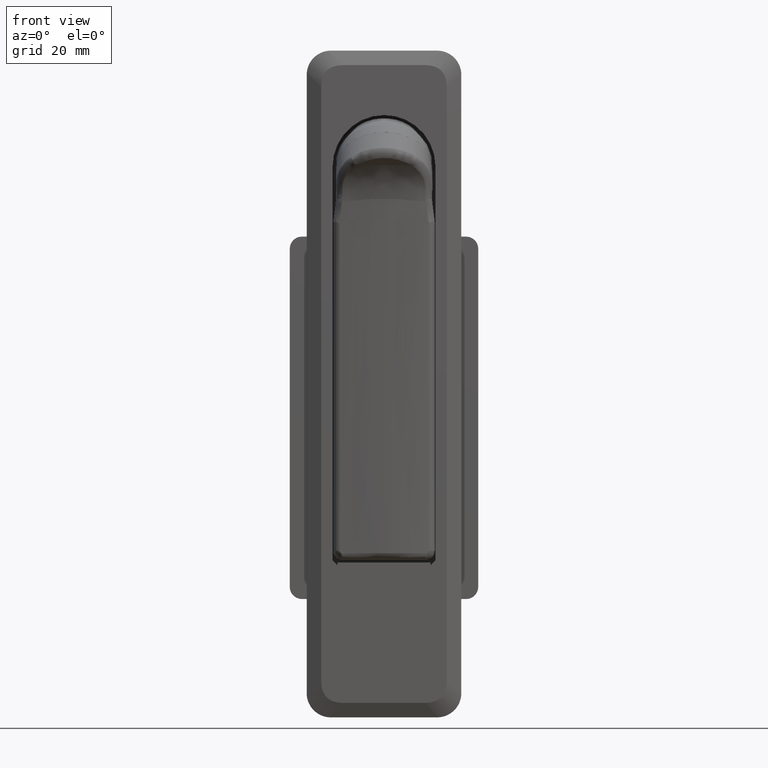
[diagram: clean part render]
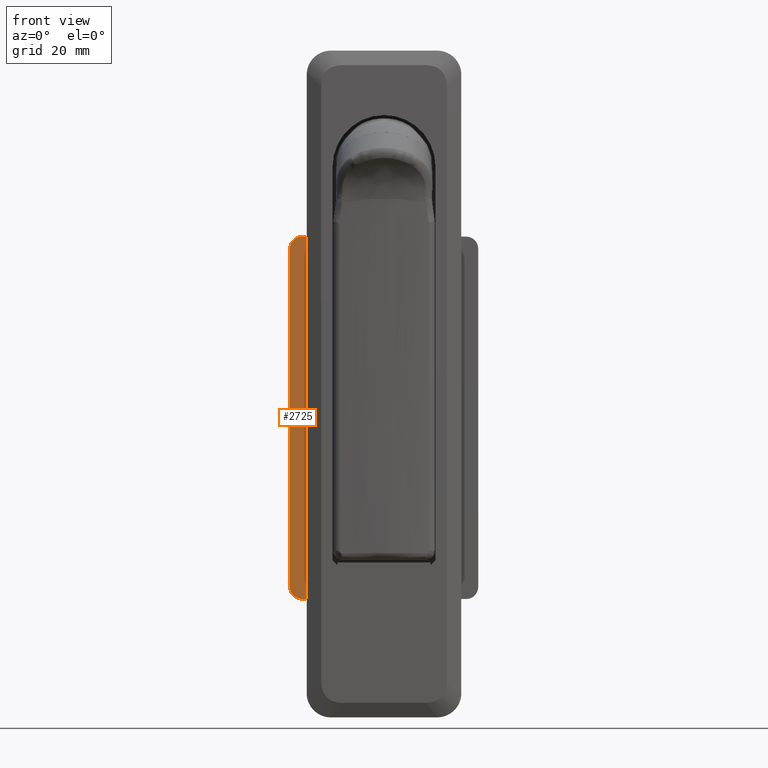
[diagram: same view with one face highlighted and labeled with its STEP entity id]
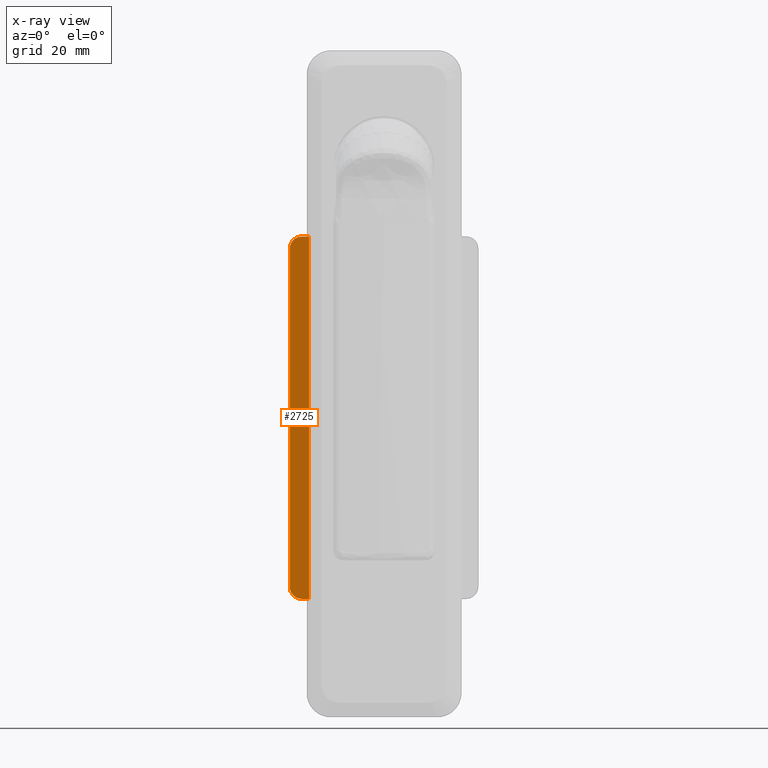
[diagram: x-ray of the same camera — body ghosted, the highlighted face saturated]
A machine part, front view. The second image highlights one B-rep face of the part: STEP entity #2725.
The next image is the same camera in x-ray: the body ghosted, the highlighted face saturated — about 0% of this face is hidden behind the body in this view.
In plain terms, the highlighted face is a freeform B-spline surface patch.
Its self-contained STEP definition (entity closure, byte-faithful):
#2105=CARTESIAN_POINT('',(4.299999999999955,17.0,-89.500000000000000));
#2106=VERTEX_POINT('',#2105);
#2112=CARTESIAN_POINT('',(4.299999999999950,19.500000000000000,-87.0));
#2113=VERTEX_POINT('',#2112);
#2114=CARTESIAN_POINT('',(4.299999999999950,19.500000000000000,-87.0));
#2115=CARTESIAN_POINT('',(4.299999999999952,19.500443854205059,-87.347759588085950));
#2116=CARTESIAN_POINT('',(4.299999999999947,19.365506901970001,-87.981487937173000));
#2117=CARTESIAN_POINT('',(4.299999999999959,18.904286350899671,-88.671816443168169));
#2118=CARTESIAN_POINT('',(4.299999999999954,18.431707933299730,-89.069101916940753));
#2119=CARTESIAN_POINT('',(4.299999999999956,17.838291027558451,-89.395905802994037));
#2120=CARTESIAN_POINT('',(4.299999999999948,17.347798934517549,-89.500468814343492));
#2121=CARTESIAN_POINT('',(4.299999999999955,17.0,-89.500000000000000));
#2122=B_SPLINE_CURVE_WITH_KNOTS('',3,(#2114,#2115,#2116,#2117,#2118,#2119,#2120,#2121),.UNSPECIFIED.,.F.,.U.,(4,1,1,1,1,4),(0.000000307271375,1.043135946012805,1.902227440174774,2.454423626520123,2.883953722123376,3.927089360864353),.UNSPECIFIED.);
#2123=EDGE_CURVE('',#2113,#2106,#2122,.T.);
#2162=CARTESIAN_POINT('',(4.299999999999950,19.500000000000000,-17.0));
#2163=VERTEX_POINT('',#2162);
#2169=CARTESIAN_POINT('',(4.299999999999955,17.0,-14.500000000000000));
#2170=VERTEX_POINT('',#2169);
#2171=CARTESIAN_POINT('',(4.299999999999955,17.0,-14.500000000000000));
#2172=CARTESIAN_POINT('',(4.299999999999954,17.368299480563469,-14.499378742528620));
#2173=CARTESIAN_POINT('',(4.299999999999958,17.899517969551709,-14.619708133686821));
#2174=CARTESIAN_POINT('',(4.299999999999958,18.569423684800508,-15.021260506646330));
#2175=CARTESIAN_POINT('',(4.299999999999957,18.978723477947479,-15.430591013378010));
#2176=CARTESIAN_POINT('',(4.299999999999946,19.380311251594240,-16.100470725251220));
#2177=CARTESIAN_POINT('',(4.299999999999962,19.500603108142819,-16.631705399485469));
#2178=CARTESIAN_POINT('',(4.299999999999950,19.500000000000000,-17.0));
#2179=B_SPLINE_CURVE_WITH_KNOTS('',3,(#2171,#2172,#2173,#2174,#2175,#2176,#2177,#2178),.UNSPECIFIED.,.F.,.U.,(4,1,1,1,1,4),(0.000000307274926,1.104502722684548,1.595421393526904,2.331668274612933,2.822586945455088,3.927089360864210),.UNSPECIFIED.);
#2180=EDGE_CURVE('',#2170,#2163,#2179,.T.);
#2367=CARTESIAN_POINT('',(4.299999999999955,15.500000000000000,-14.500000000000000));
#2368=VERTEX_POINT('',#2367);
#2369=CARTESIAN_POINT('',(4.299999999999955,17.0,-14.500000000000000));
#2370=CARTESIAN_POINT('',(4.299999999999955,15.500000000000000,-14.500000000000000));
#2371=QUASI_UNIFORM_CURVE('',1,(#2369,#2370),.UNSPECIFIED.,.F.,.U.);
#2372=EDGE_CURVE('',#2170,#2368,#2371,.T.);
#2427=CARTESIAN_POINT('',(4.299999999999950,19.500000000000000,-87.0));
#2428=CARTESIAN_POINT('',(4.299999999999950,19.500000000000000,-17.0));
#2429=QUASI_UNIFORM_CURVE('',1,(#2427,#2428),.UNSPECIFIED.,.F.,.U.);
#2430=EDGE_CURVE('',#2113,#2163,#2429,.T.);
#2680=CARTESIAN_POINT('',(4.299999999999955,15.500000000000000,-89.500000000000000));
#2681=VERTEX_POINT('',#2680);
#2682=CARTESIAN_POINT('',(4.299999999999955,15.500000000000000,-89.500000000000000));
#2683=CARTESIAN_POINT('',(4.299999999999955,15.500000000000000,-14.500000000000000));
#2684=QUASI_UNIFORM_CURVE('',1,(#2682,#2683),.UNSPECIFIED.,.F.,.U.);
#2685=EDGE_CURVE('',#2681,#2368,#2684,.T.);
#2708=CARTESIAN_POINT('',(4.299999999999950,19.699799992247218,-93.246249854635465));
#2709=CARTESIAN_POINT('',(4.299999999999950,15.300199900464410,-93.246249854635465));
#2710=CARTESIAN_POINT('',(4.299999999999950,19.699799992247218,-10.753748133707790));
#2711=CARTESIAN_POINT('',(4.299999999999950,15.300199900464410,-10.753748133707790));
#2712=B_SPLINE_SURFACE_WITH_KNOTS('',1,1,((#2708,#2710),(#2709,#2711)),.UNSPECIFIED.,.F.,.F.,.U.,(2,2),(2,2),(0.0,4.399600091782808),(0.0,82.492501720927677),.UNSPECIFIED.);
#2713=ORIENTED_EDGE('',*,*,#2372,.F.);
#2714=ORIENTED_EDGE('',*,*,#2180,.T.);
#2715=ORIENTED_EDGE('',*,*,#2430,.F.);
#2716=ORIENTED_EDGE('',*,*,#2123,.T.);
#2717=CARTESIAN_POINT('',(4.299999999999955,17.0,-89.500000000000000));
#2718=CARTESIAN_POINT('',(4.299999999999955,15.500000000000000,-89.500000000000000));
#2719=QUASI_UNIFORM_CURVE('',1,(#2717,#2718),.UNSPECIFIED.,.F.,.U.);
#2720=EDGE_CURVE('',#2106,#2681,#2719,.T.);
#2721=ORIENTED_EDGE('',*,*,#2720,.T.);
#2722=ORIENTED_EDGE('',*,*,#2685,.T.);
#2723=EDGE_LOOP('',(#2713,#2714,#2715,#2716,#2721,#2722));
#2724=FACE_OUTER_BOUND('',#2723,.T.);
#2725=ADVANCED_FACE('',(#2724),#2712,.T.);